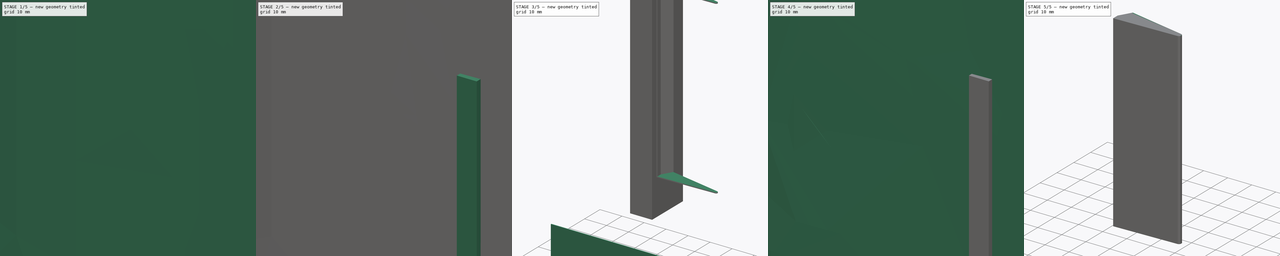
[diagram: build sequence overview — one tinted view per stage of 5, left to right]
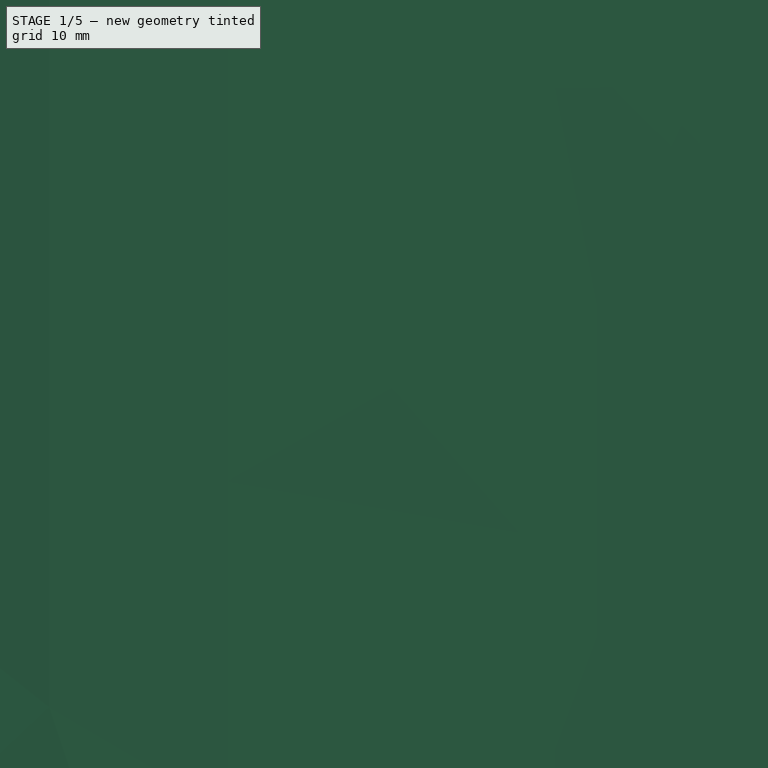
[diagram: stage 1 of 5 — iso view after this stage's code; geometry added in this stage tinted green]
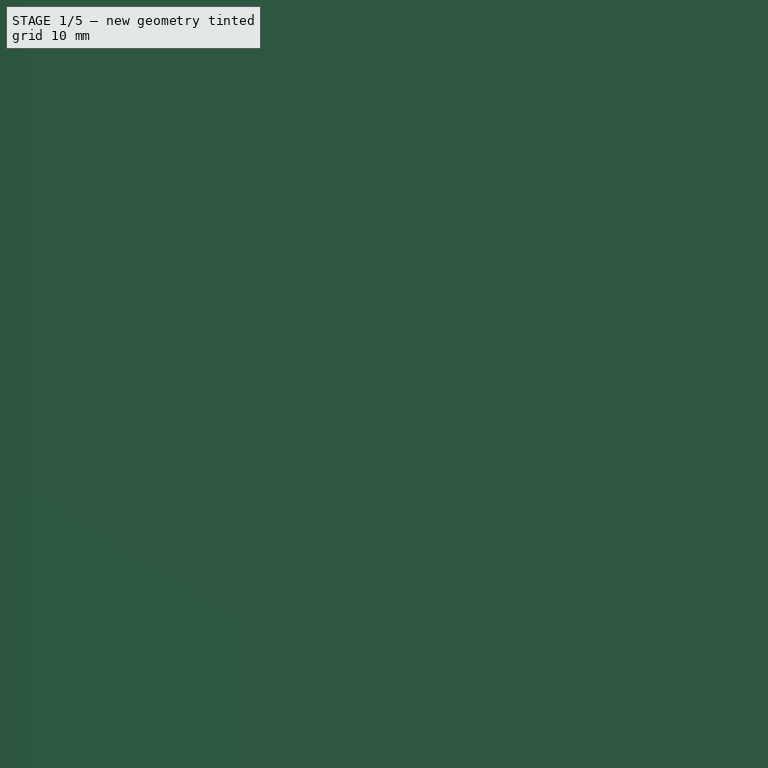
[diagram: stage 1 of 5 — front view after this stage's code; geometry added in this stage tinted green]
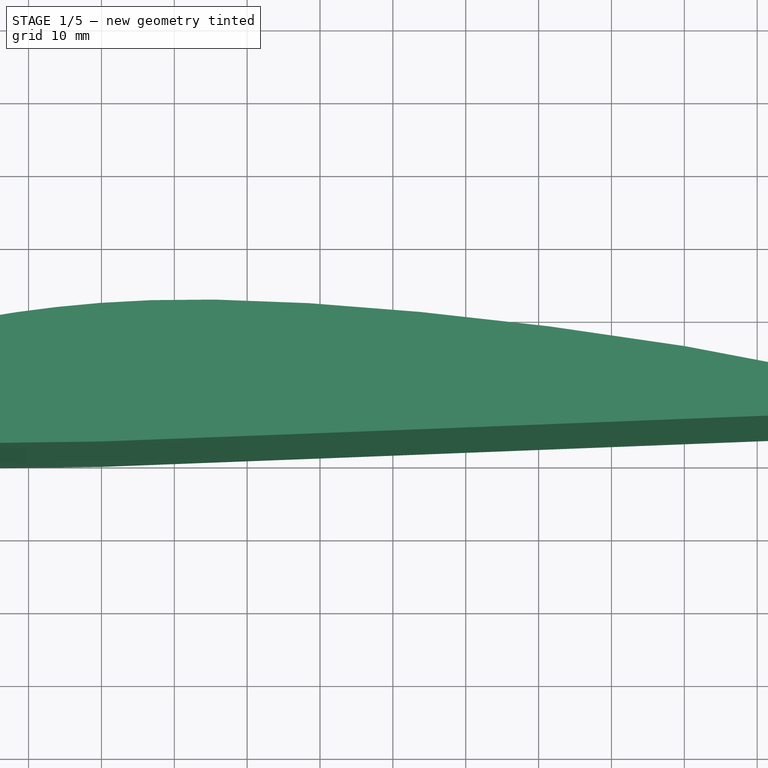
[diagram: stage 1 of 5 — top view after this stage's code; geometry added in this stage tinted green]
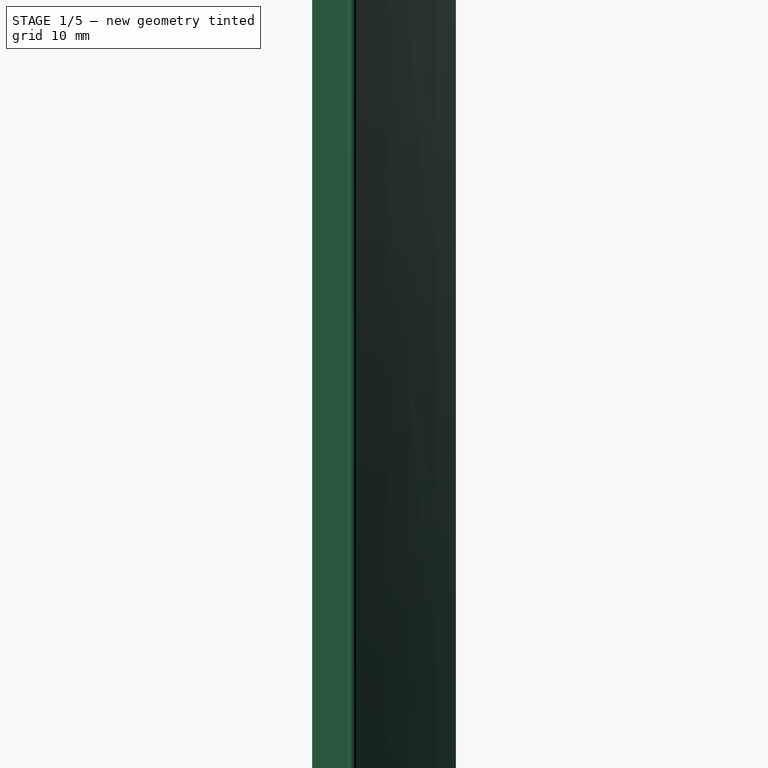
[diagram: stage 1 of 5 — right view after this stage's code; geometry added in this stage tinted green]
FCSTD DOCUMENT  (FreeCAD 0.21R33694 (Git))
Label: aileron
License: All rights reserved
LicenseURL: http://en.wikipedia.org/wiki/All_rights_reserved
objects: Sketcher::SketchObject×15, PartDesign::Pad×15, Part::MultiCommon×13, Part::Box×12, PartDesign::Body×10, Part::Cut×6, Part::MultiFuse×4, Part::FeaturePython×3, App::MeasureDistance×2, PartDesign::Thickness×1
note: 92 computed .brp shape members not serialized (recipe doc carries the construction recipe); baked Part::Feature solids carry a one-line shape summary decoded from their .brp

FEATURE [App::MeasureDistance] Distance  label="Distance: 78.20 mm"
  Distance = 78.2
  P1 = (49,2.05734,55.4)
  P2 = (49,2.05734,133.6)
FEATURE [App::MeasureDistance] Distance001  label="Distance: 30.67 mm"
  Distance = 30.6656
  P1 = (49,2.05734,133.6)
  P2 = (79,-4.29694,133.6)
FEATURE [Part::Box] Box002  label="Cube002"
  AttacherType = Attacher::AttachEngine3D
  Height = 78.2
  Length = 30
  Placement = pos=(49,-12.6,55.4) rot=(0,0,1;0rad)
  Width = 30
FEATURE [Sketcher::SketchObject] Sketch013
  FullyConstrained = false
  MapMode = 5
  Support = -> [XY_Plane011]
  sketch-geometry (30):
    g0: ArcOfCircle CenterX=78.0455 CenterY=-4.69261 CenterZ=0 NormalX=0 NormalY=0 NormalZ=1 AngleXU=0 Radius=0.633228 StartAngle=4.68069 EndAngle=7.80443
    g1-g15: Circle x15 (B-spline internal-alignment scaffolding for g16; pole/knot coordinates omitted)
    g16: BSplineCurve PolesCount=15 KnotsCount=13 Degree=3 IsPeriodic=0
    g17-g29: GeomPoint x13 (B-spline internal-alignment scaffolding for g16; pole/knot coordinates omitted)
  constraints (6):
    c: Weight(g1) = 1
    c: Coincident(g16,g0)
    c: Equal(g1, g2-g15) x14
    c: Coincident(g16,g0)
    c: InternalAlignment(g1-g15 -> g16) x15
    c: InternalAlignment(g17-g29 -> g16) x13
FEATURE [PartDesign::Pad] Pad013
  Direction = (0,0,1)
  Length = 200
  Length2 = 10
  Profile = -> Sketch013
  Type = 0
FEATURE [Part::MultiCommon] Common009
  Shapes = -> [Box002,Pad013]
FEATURE [Part::Box] Box004  label="Cube004"
  AttacherType = Attacher::AttachEngine3D
  Height = 100
  Length = 10
  Placement = pos=(42,-9,39) rot=(0,0,1;0rad)
  Width = 20
FEATURE [Part::Box] Box005  label="Cube005"
  AttacherType = Attacher::AttachEngine3D
  Height = 100
  Length = 10
  Placement = pos=(41,-3,38) rot=(0,0,1;5.75959rad)
  Width = 20
FEATURE [Part::Cut] Cut001
  Base = -> Common009
  Tool = -> Box004
FEATURE [Part::Cut] Cut003
  Base = -> Cut001
  Tool = -> Box005
FEATURE [Part::Box] Box007  label="Cube007"
  AttacherType = Attacher::AttachEngine3D
  Height = 100
  Length = 0.4
  Placement = pos=(52,-6.9,47.7) rot=(0,0,1;0rad)
  Width = 10
FEATURE [Sketcher::SketchObject] Sketch014
  FullyConstrained = false
  MapMode = 5
  Support = -> [XY_Plane012]
  sketch-geometry (30):
    g0: ArcOfCircle CenterX=78.0455 CenterY=-4.69261 CenterZ=0 NormalX=0 NormalY=0 NormalZ=1 AngleXU=0 Radius=0.633228 StartAngle=4.68069 EndAngle=7.80443
    g1-g15: Circle x15 (B-spline internal-alignment scaffolding for g16; pole/knot coordinates omitted)
    g16: BSplineCurve PolesCount=15 KnotsCount=13 Degree=3 IsPeriodic=0
    g17-g29: GeomPoint x13 (B-spline internal-alignment scaffolding for g16; pole/knot coordinates omitted)
  constraints (6):
    c: Weight(g1) = 1
    c: Coincident(g16,g0)
    c: Equal(g1, g2-g15) x14
    c: Coincident(g16,g0)
    c: InternalAlignment(g1-g15 -> g16) x15
    c: InternalAlignment(g17-g29 -> g16) x13
FEATURE [PartDesign::Pad] Pad014
  Direction = (0,0,1)
  Length = 200
  Length2 = 10
  Profile = -> Sketch014
  Type = 0
FEATURE [Part::MultiCommon] Common012
  Shapes = -> [Cut003,Box007]
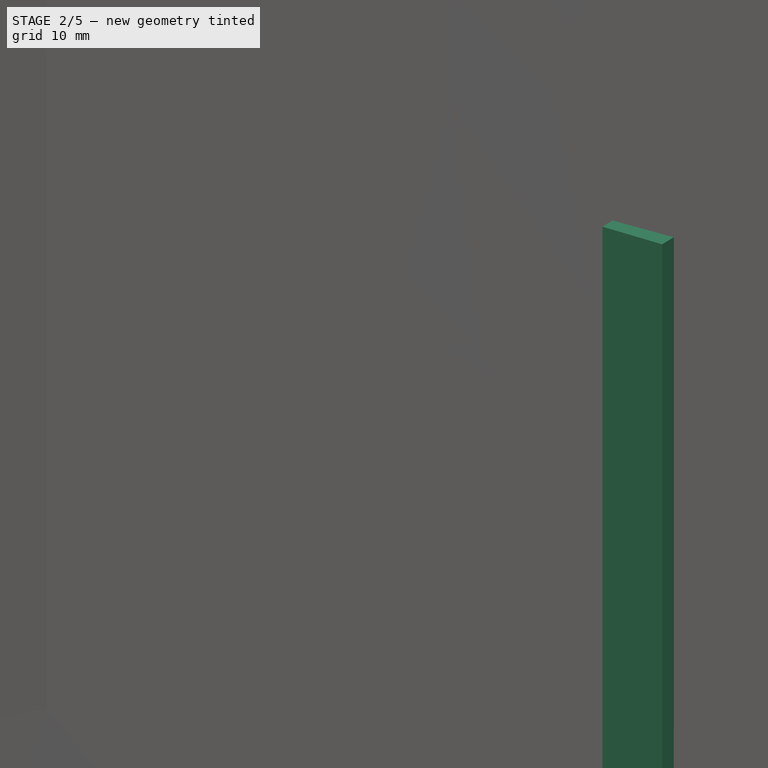
[diagram: stage 2 of 5 — iso view after this stage's code; geometry added in this stage tinted green]
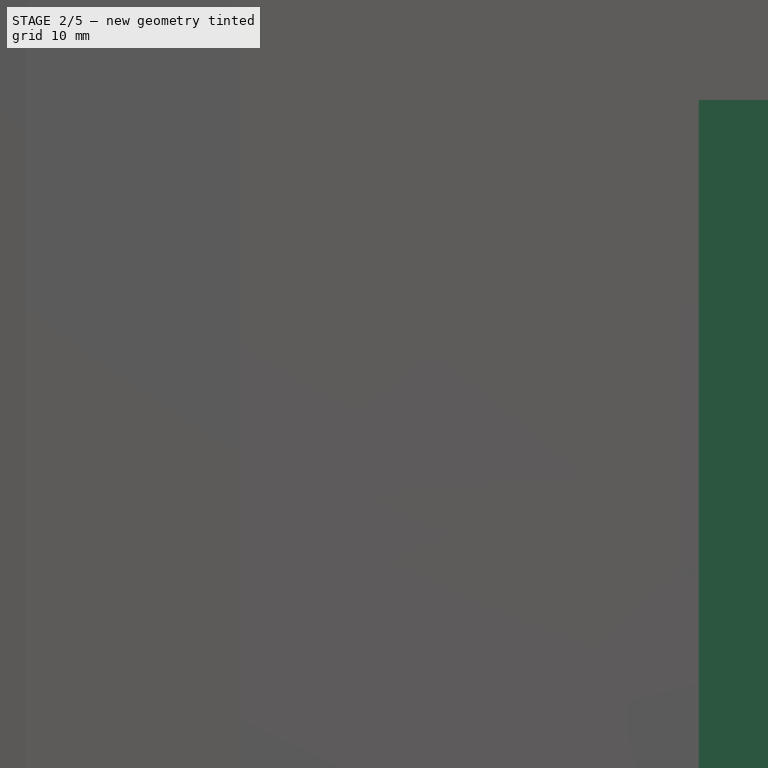
[diagram: stage 2 of 5 — front view after this stage's code; geometry added in this stage tinted green]
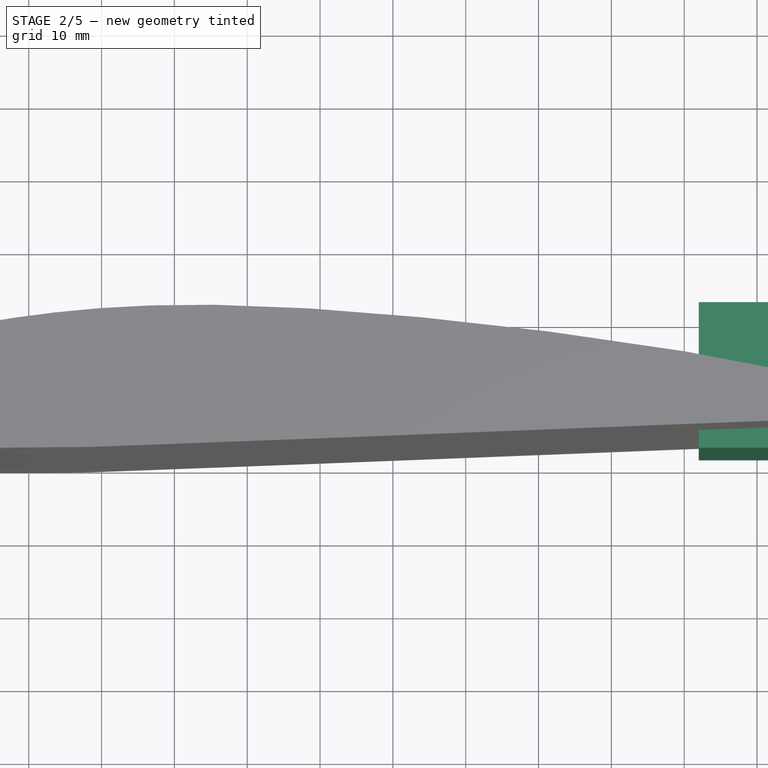
[diagram: stage 2 of 5 — top view after this stage's code; geometry added in this stage tinted green]
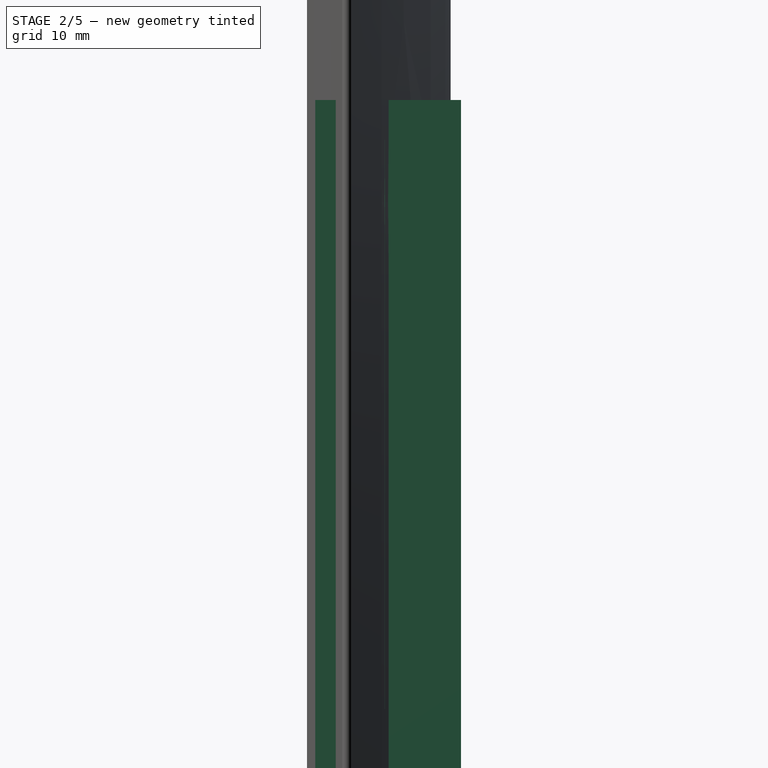
[diagram: stage 2 of 5 — right view after this stage's code; geometry added in this stage tinted green]
FEATURE [Sketcher::SketchObject] Sketch006
  FullyConstrained = false
  MapMode = 5
  Support = -> [XY_Plane006]
  sketch-geometry (30):
    g0: ArcOfCircle CenterX=78.0455 CenterY=-4.69261 CenterZ=0 NormalX=0 NormalY=0 NormalZ=1 AngleXU=0 Radius=0.633228 StartAngle=4.68069 EndAngle=7.80443
    g1-g15: Circle x15 (B-spline internal-alignment scaffolding for g16; pole/knot coordinates omitted)
    g16: BSplineCurve PolesCount=15 KnotsCount=13 Degree=3 IsPeriodic=0
    g17-g29: GeomPoint x13 (B-spline internal-alignment scaffolding for g16; pole/knot coordinates omitted)
  constraints (6):
    c: Weight(g1) = 1
    c: Coincident(g16,g0)
    c: Equal(g1, g2-g15) x14
    c: Coincident(g16,g0)
    c: InternalAlignment(g1-g15 -> g16) x15
    c: InternalAlignment(g17-g29 -> g16) x13
FEATURE [PartDesign::Pad] Pad006
  Direction = (0,0,1)
  Length = 200
  Length2 = 10
  Profile = -> Sketch006
  ReferenceAxis = -> Sketch006 [N_Axis]
  Type = 0
FEATURE [Part::Box] Box003  label="Cube003"
  AttacherType = Attacher::AttachEngine3D
  Height = 100
  Length = 10
  Placement = pos=(42,-9,39) rot=(0,0,1;0rad)
  Width = 20
FEATURE [Part::Box] Box008  label="Cube008"
  AttacherType = Attacher::AttachEngine3D
  Height = 100
  Length = 0.4
  Placement = pos=(50.9404,-5.7391,38.2) rot=(0,0,1;5.75959rad)
  Width = 10
FEATURE [Part::Box] Box009  label="Cube009"
  AttacherType = Attacher::AttachEngine3D
  Height = 78.2
  Length = 30
  Placement = pos=(49,-12.6,55.4) rot=(0,0,1;0rad)
  Width = 30
FEATURE [Part::Box] Box010  label="Cube010"
  AttacherType = Attacher::AttachEngine3D
  Height = 100
  Length = 10
  Placement = pos=(42,-9,39) rot=(0,0,1;0rad)
  Width = 20
FEATURE [Part::Box] Box011  label="Cube011"
  AttacherType = Attacher::AttachEngine3D
  Height = 100
  Length = 10
  Placement = pos=(41,-3,38) rot=(0,0,-1;0.523599rad)
  Width = 20
FEATURE [Part::MultiCommon] Common010
  Shapes = -> [Box009,Pad014]
FEATURE [Part::Cut] Cut004
  Base = -> Common010
  Tool = -> Box010
FEATURE [Part::Cut] Cut005
  Base = -> Cut004
  Tool = -> Box011
FEATURE [Part::MultiCommon] Common011
  Shapes = -> [Cut005,Box008]
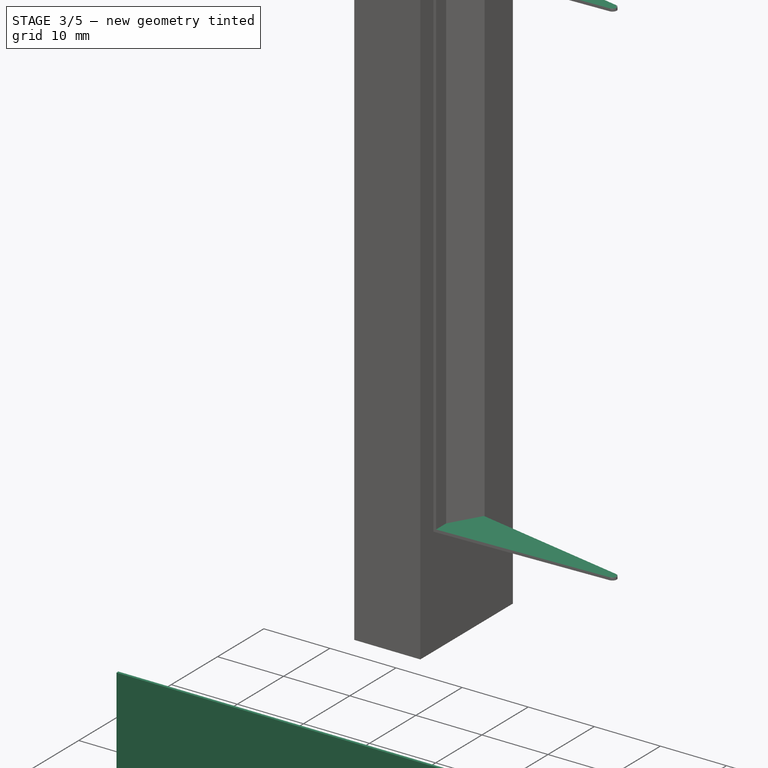
[diagram: stage 3 of 5 — iso view after this stage's code; geometry added in this stage tinted green]
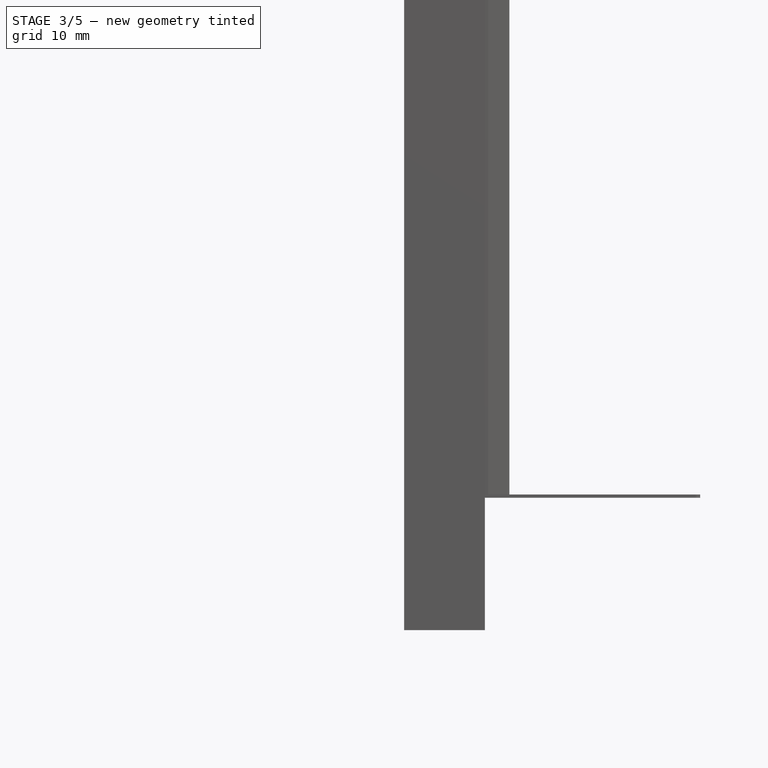
[diagram: stage 3 of 5 — front view after this stage's code; geometry added in this stage tinted green]
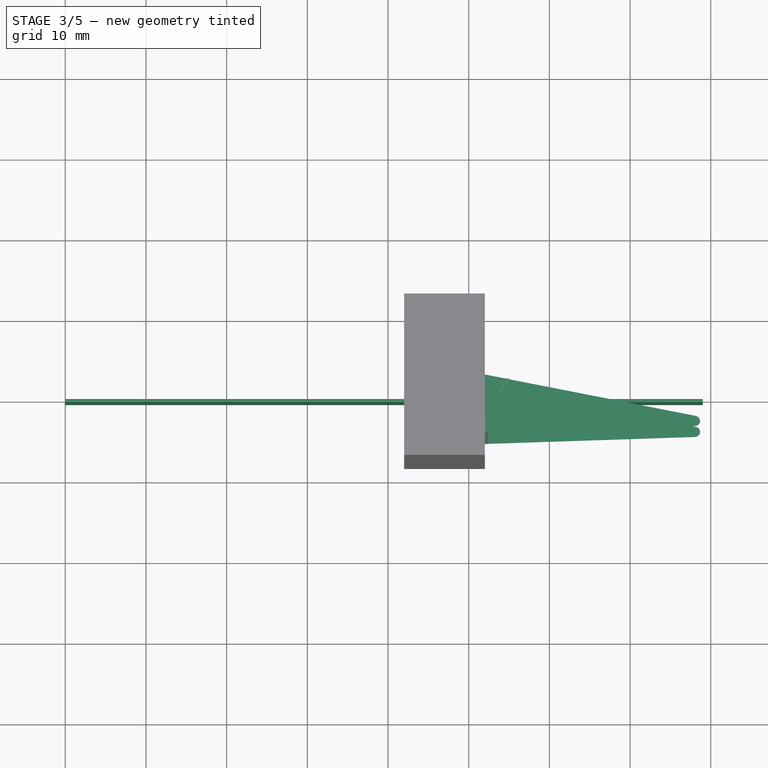
[diagram: stage 3 of 5 — top view after this stage's code; geometry added in this stage tinted green]
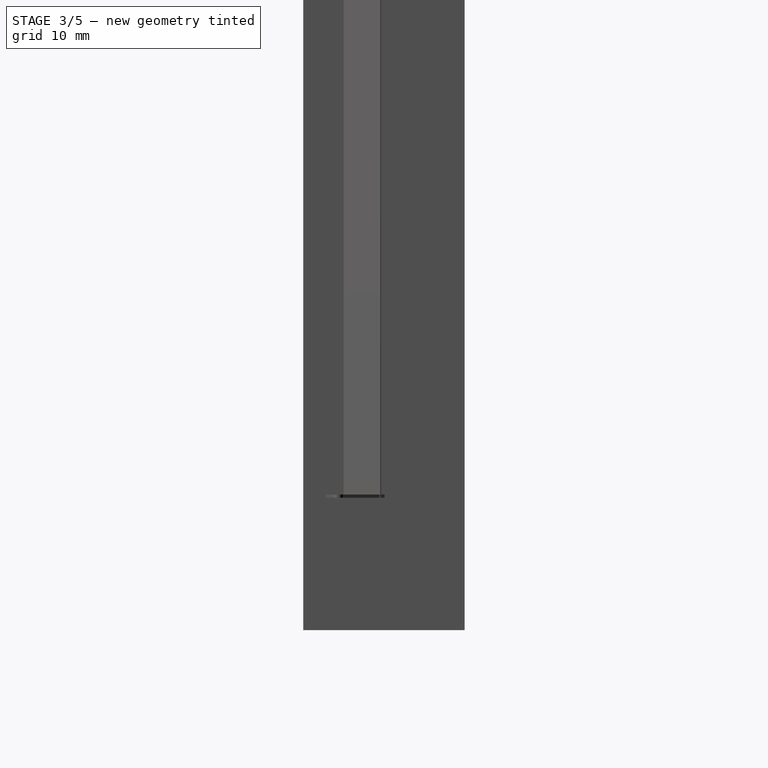
[diagram: stage 3 of 5 — right view after this stage's code; geometry added in this stage tinted green]
FEATURE [Sketcher::SketchObject] Sketch
  FullyConstrained = true
  MapMode = 5
  Placement = pos=(0,0,0) rot=(1,0,0;1.5708rad)
  Support = -> [XZ_Plane]
  sketch-geometry (4):
    g0: LineSegment StartX=0 StartY=0 StartZ=0 EndX=79 EndY=0 EndZ=0
    g1: LineSegment StartX=79 StartY=0 StartZ=0 EndX=79 EndY=20 EndZ=0
    g2: LineSegment StartX=79 StartY=20 StartZ=0 EndX=0 EndY=20 EndZ=0
    g3: LineSegment StartX=0 StartY=20 StartZ=0 EndX=0 EndY=0 EndZ=0
  constraints (11):
    c: Coincident(g0,g1)
    c: Coincident(g1,g2)
    c: Coincident(g2,g3)
    c: Coincident(g3,g0)
    c: Horizontal(g0)
    c: Horizontal(g2)
    c: Vertical(g1)
    c: Vertical(g3)
    c: Coincident(g0,g-1)
    c: DistanceY(g3,g3) = 20
    c: DistanceX(g2,g2) = 79
FEATURE [PartDesign::Pad] Pad
  Direction = (0,-1,2e-16)
  Length = 0.4
  Length2 = 10
  Placement = pos=(0,0,0) rot=(1,0,0;1.5708rad)
  Profile = -> Sketch
  ReferenceAxis = -> Sketch [N_Axis]
  Type = 0
FEATURE [Sketcher::SketchObject] Sketch001
  ExternalGeometry = -> [Pad]
  FullyConstrained = true
  MapMode = 5
  Placement = pos=(0,0,0) rot=(-1,0,0;1.5708rad)
  Support = -> [Pad]
  sketch-geometry (8):
    g0: LineSegment StartX=0 StartY=0 StartZ=0 EndX=0.4 EndY=0 EndZ=0
    g1: LineSegment StartX=0.4 StartY=0 StartZ=0 EndX=0.4 EndY=-20 EndZ=0
    g2: LineSegment StartX=0.4 StartY=-20 StartZ=0 EndX=0 EndY=-20 EndZ=0
    g3: LineSegment StartX=0 StartY=-20 StartZ=0 EndX=0 EndY=0 EndZ=0
    g4: LineSegment StartX=78.6 StartY=0 StartZ=0 EndX=79 EndY=0 EndZ=0
    g5: LineSegment StartX=79 StartY=0 StartZ=0 EndX=79 EndY=-20 EndZ=0
    g6: LineSegment StartX=79 StartY=-20 StartZ=0 EndX=78.6 EndY=-20 EndZ=0
    g7: LineSegment StartX=78.6 StartY=-20 StartZ=0 EndX=78.6 EndY=0 EndZ=0
  constraints (23):
    c: Coincident(g0,g1)
    c: Coincident(g1,g2)
    c: Coincident(g2,g3)
    c: Coincident(g3,g0)
    c: Horizontal(g0)
    c: Horizontal(g2)
    c: Vertical(g1)
    c: Vertical(g3)
    c: Coincident(g0,g-1)
    c: Coincident(g4,g5)
    c: Coincident(g5,g6)
    c: Coincident(g6,g7)
    c: Coincident(g7,g4)
    c: Horizontal(g4)
    c: Horizontal(g6)
    c: Vertical(g5)
    c: Vertical(g7)
    c: PointOnObject(g4,g-1)
    c: DistanceY(g-3,g2) = 0
    c: DistanceY(g-3,g6) = 0
    c: DistanceX(g0,g0) = 0.4
    c: DistanceX(g4,g-3) = 0
    c: DistanceX(g4,g4) = 0.4
FEATURE [PartDesign::Pad] Pad001
  BaseFeature = -> Pad
  Direction = (0,1,-2e-16)
  Length = 30
  Length2 = 10
  Placement = pos=(0,0,0) rot=(1,0,0;1.5708rad)
  Profile = -> Sketch001
  ReferenceAxis = -> Sketch001 [N_Axis]
  Type = 0
FEATURE [PartDesign::Body] Body
  Group = -> [Sketch,Pad,Sketch001,Pad001]
  Origin = -> Origin
  Placement = pos=(49,10,134) rot=(0.57735,0.57735,-0.57735;2.0944rad)
  Tip = -> Pad001
FEATURE [Sketcher::SketchObject] Sketch002
  FullyConstrained = true
  MapMode = 5
  Support = -> [XY_Plane001]
  sketch-geometry (4):
    g0: LineSegment StartX=0.4 StartY=0 StartZ=0 EndX=78.6 EndY=0 EndZ=0
    g1: LineSegment StartX=78.6 StartY=0 StartZ=0 EndX=78.6 EndY=30 EndZ=0
    g2: LineSegment StartX=78.6 StartY=30 StartZ=0 EndX=0.4 EndY=30 EndZ=0
    g3: LineSegment StartX=0.4 StartY=30 StartZ=0 EndX=0.4 EndY=0 EndZ=0
  constraints (12):
    c: Coincident(g0,g1)
    c: Coincident(g1,g2)
    c: Coincident(g2,g3)
    c: Coincident(g3,g0)
    c: Horizontal(g0)
    c: Horizontal(g2)
    c: Vertical(g1)
    c: Vertical(g3)
    c: PointOnObject(g0,g-1)
    c: DistanceY(g0,g2) = 30
    c: DistanceX(g2,g1) = 78.2
    c: DistanceX(g-1,g2) = 0.4
FEATURE [PartDesign::Pad] Pad002
  Direction = (0,0,1)
  Length = 20
  Length2 = 10
  Profile = -> Sketch002
  ReferenceAxis = -> Sketch002 [N_Axis]
  Type = 0
FEATURE [PartDesign::Body] Body005
  Group = -> [Pad006,Sketch006]
  Origin = -> Origin005
  Tip = -> Pad006
FEATURE [Part::MultiCommon] Common002
  Placement = pos=(0,0,-0.4) rot=(0,0,1;0rad)
  Shapes = -> [Body,Body005]
FEATURE [Sketcher::SketchObject] Sketch007
  FullyConstrained = true
  MapMode = 5
  Placement = pos=(0,0,0) rot=(1,0,0;1.5708rad)
  Support = -> [XZ_Plane006]
  sketch-geometry (4):
    g0: LineSegment StartX=0 StartY=0 StartZ=0 EndX=79 EndY=0 EndZ=0
    g1: LineSegment StartX=79 StartY=0 StartZ=0 EndX=79 EndY=20 EndZ=0
    g2: LineSegment StartX=79 StartY=20 StartZ=0 EndX=0 EndY=20 EndZ=0
    g3: LineSegment StartX=0 StartY=20 StartZ=0 EndX=0 EndY=0 EndZ=0
  constraints (11):
    c: Coincident(g0,g1)
    c: Coincident(g1,g2)
    c: Coincident(g2,g3)
    c: Coincident(g3,g0)
    c: Horizontal(g0)
    c: Horizontal(g2)
    c: Vertical(g1)
    c: Vertical(g3)
    c: Coincident(g0,g-1)
    c: DistanceY(g3,g3) = 20
    c: DistanceX(g2,g2) = 79
FEATURE [PartDesign::Pad] Pad007
  Direction = (0,-1,2e-16)
  Length = 0.4
  Length2 = 10
  Placement = pos=(0,0,0) rot=(1,0,0;1.5708rad)
  Profile = -> Sketch007
  ReferenceAxis = -> Sketch007 [N_Axis]
  Type = 0
FEATURE [Sketcher::SketchObject] Sketch008
  ExternalGeometry = -> [Pad007]
  FullyConstrained = true
  MapMode = 5
  Placement = pos=(0,0,0) rot=(-1,0,0;1.5708rad)
  Support = -> [Pad007]
  sketch-geometry (8):
    g0: LineSegment StartX=0 StartY=0 StartZ=0 EndX=0.4 EndY=0 EndZ=0
    g1: LineSegment StartX=0.4 StartY=0 StartZ=0 EndX=0.4 EndY=-20 EndZ=0
    g2: LineSegment StartX=0.4 StartY=-20 StartZ=0 EndX=0 EndY=-20 EndZ=0
    g3: LineSegment StartX=0 StartY=-20 StartZ=0 EndX=0 EndY=0 EndZ=0
    g4: LineSegment StartX=78.6 StartY=0 StartZ=0 EndX=79 EndY=0 EndZ=0
    g5: LineSegment StartX=79 StartY=0 StartZ=0 EndX=79 EndY=-20 EndZ=0
    g6: LineSegment StartX=79 StartY=-20 StartZ=0 EndX=78.6 EndY=-20 EndZ=0
    g7: LineSegment StartX=78.6 StartY=-20 StartZ=0 EndX=78.6 EndY=0 EndZ=0
  constraints (23):
    c: Coincident(g0,g1)
    c: Coincident(g1,g2)
    c: Coincident(g2,g3)
    c: Coincident(g3,g0)
    c: Horizontal(g0)
    c: Horizontal(g2)
    c: Vertical(g1)
    c: Vertical(g3)
    c: Coincident(g0,g-1)
    c: Coincident(g4,g5)
    c: Coincident(g5,g6)
    c: Coincident(g6,g7)
    c: Coincident(g7,g4)
    c: Horizontal(g4)
    c: Horizontal(g6)
    c: Vertical(g5)
    c: Vertical(g7)
    c: PointOnObject(g4,g-1)
    c: DistanceY(g-3,g2) = 0
    c: DistanceY(g-3,g6) = 0
    c: DistanceX(g0,g0) = 0.4
    c: DistanceX(g4,g-3) = 0
    c: DistanceX(g4,g4) = 0.4
FEATURE [PartDesign::Pad] Pad008
  BaseFeature = -> Pad007
  Direction = (0,1,-2e-16)
  Length = 30
  Length2 = 10
  Placement = pos=(0,0,0) rot=(1,0,0;1.5708rad)
  Profile = -> Sketch008
  ReferenceAxis = -> Sketch008 [N_Axis]
  Type = 0
FEATURE [PartDesign::Body] Body006
  Group = -> [Sketch007,Pad007,Sketch008,Pad008]
  Origin = -> Origin006
  Placement = pos=(49,10,134) rot=(0.57735,0.57735,-0.57735;2.0944rad)
  Tip = -> Pad008
FEATURE [Sketcher::SketchObject] Sketch009
  FullyConstrained = false
  MapMode = 5
  Support = -> [XY_Plane008]
  sketch-geometry (30):
    g0: ArcOfCircle CenterX=78.0455 CenterY=-4.69261 CenterZ=0 NormalX=0 NormalY=0 NormalZ=1 AngleXU=0 Radius=0.633228 StartAngle=4.68069 EndAngle=7.80443
    g1-g15: Circle x15 (B-spline internal-alignment scaffolding for g16; pole/knot coordinates omitted)
    g16: BSplineCurve PolesCount=15 KnotsCount=13 Degree=3 IsPeriodic=0
    g17-g29: GeomPoint x13 (B-spline internal-alignment scaffolding for g16; pole/knot coordinates omitted)
  constraints (6):
    c: Weight(g1) = 1
    c: Coincident(g16,g0)
    c: Equal(g1, g2-g15) x14
    c: Coincident(g16,g0)
    c: InternalAlignment(g1-g15 -> g16) x15
    c: InternalAlignment(g17-g29 -> g16) x13
FEATURE [PartDesign::Pad] Pad009
  Direction = (0,0,1)
  Length = 200
  Length2 = 10
  Profile = -> Sketch009
  ReferenceAxis = -> Sketch009 [N_Axis]
  Type = 0
FEATURE [PartDesign::Body] Body007
  Group = -> [Pad009,Sketch009]
  Origin = -> Origin007
  Tip = -> Pad009
FEATURE [Part::MultiCommon] Common004
  Placement = pos=(0,0,0.4) rot=(0,0,1;0rad)
  Shapes = -> [Body006,Body007]
FEATURE [Sketcher::SketchObject] Sketch010
  FullyConstrained = true
  MapMode = 5
  Placement = pos=(0,0,0) rot=(1,0,0;1.5708rad)
  Support = -> [XZ_Plane008]
  sketch-geometry (4):
    g0: LineSegment StartX=0 StartY=0 StartZ=0 EndX=79 EndY=0 EndZ=0
    g1: LineSegment StartX=79 StartY=0 StartZ=0 EndX=79 EndY=20 EndZ=0
    g2: LineSegment StartX=79 StartY=20 StartZ=0 EndX=0 EndY=20 EndZ=0
    g3: LineSegment StartX=0 StartY=20 StartZ=0 EndX=0 EndY=0 EndZ=0
  constraints (11):
    c: Coincident(g0,g1)
    c: Coincident(g1,g2)
    c: Coincident(g2,g3)
    c: Coincident(g3,g0)
    c: Horizontal(g0)
    c: Horizontal(g2)
    c: Vertical(g1)
    c: Vertical(g3)
    c: Coincident(g0,g-1)
    c: DistanceY(g3,g3) = 20
    c: DistanceX(g2,g2) = 79
FEATURE [PartDesign::Pad] Pad010
  Direction = (0,-1,2e-16)
  Length = 0.4
  Length2 = 10
  Placement = pos=(0,0,0) rot=(1,0,0;1.5708rad)
  Profile = -> Sketch010
  ReferenceAxis = -> Sketch010 [N_Axis]
  Type = 0
FEATURE [Part::MultiCommon] Common007
  Shapes = -> [Body001,Common004]
FEATURE [Part::MultiCommon] Common008
  Shapes = -> [Common002,Body001]
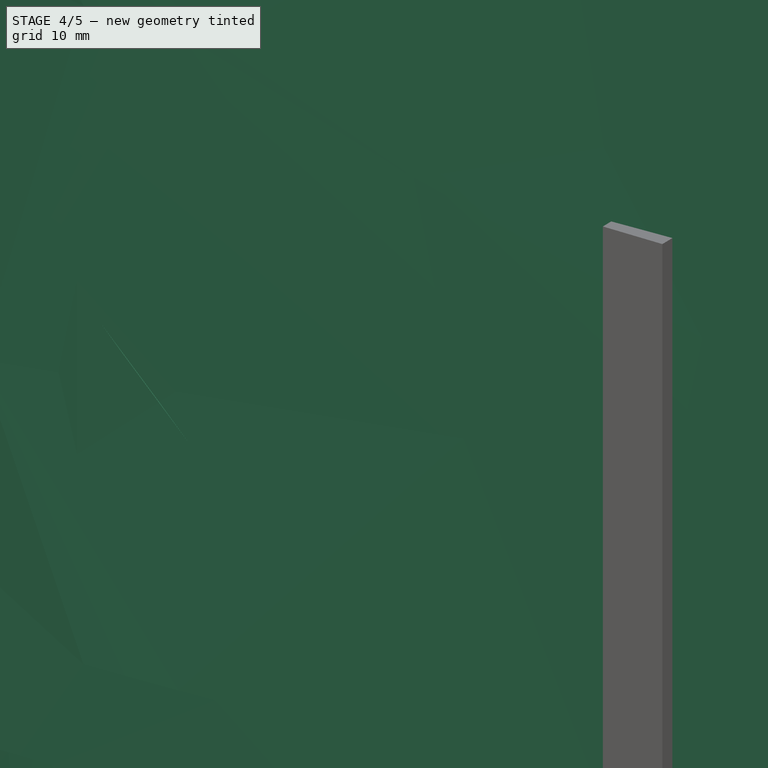
[diagram: stage 4 of 5 — iso view after this stage's code; geometry added in this stage tinted green]
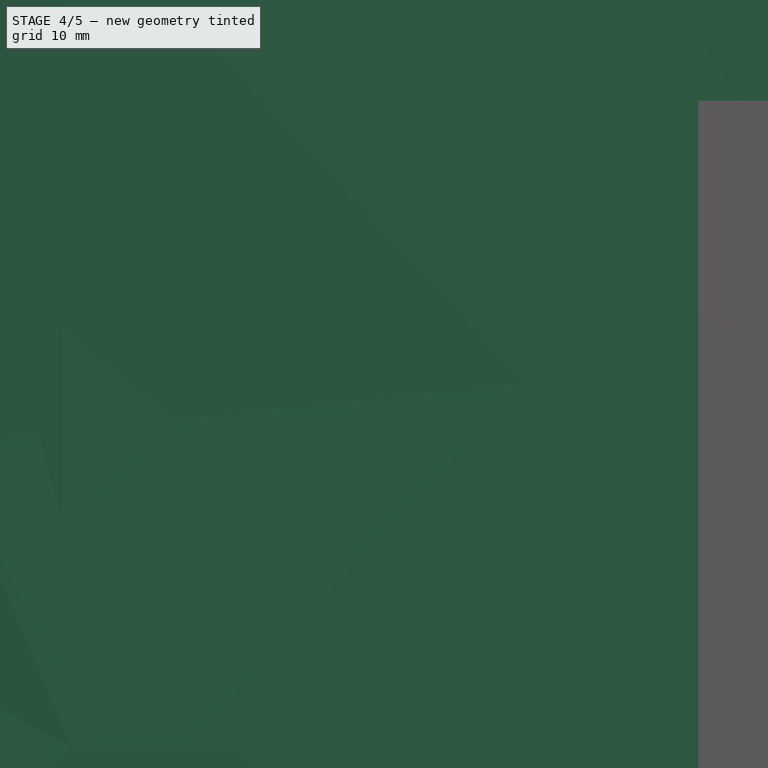
[diagram: stage 4 of 5 — front view after this stage's code; geometry added in this stage tinted green]
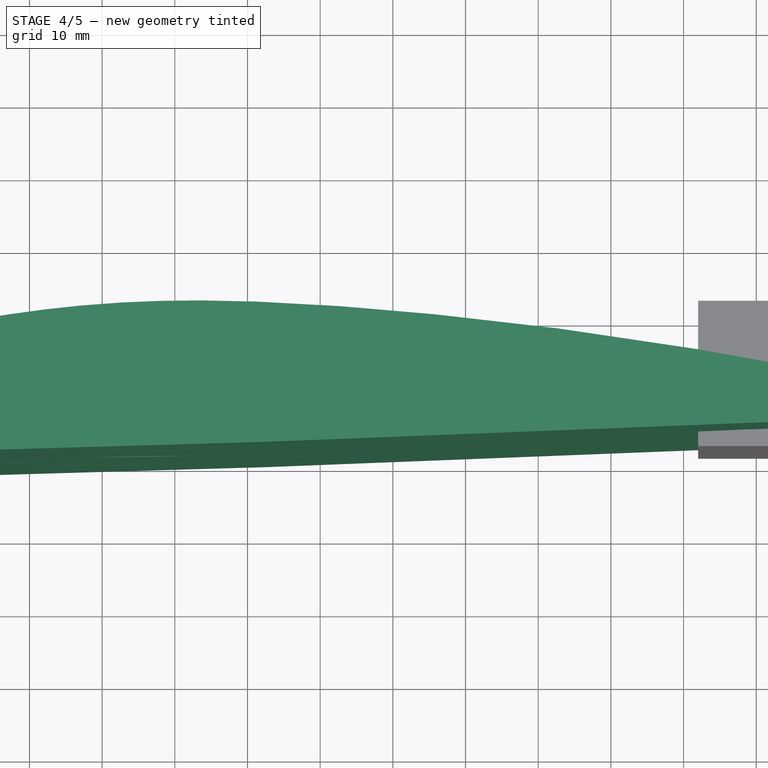
[diagram: stage 4 of 5 — top view after this stage's code; geometry added in this stage tinted green]
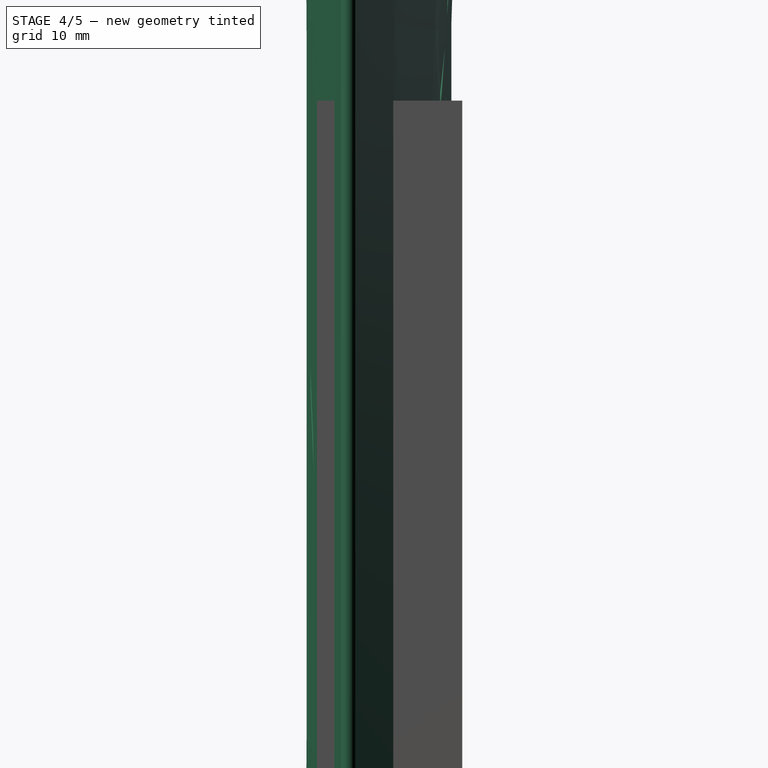
[diagram: stage 4 of 5 — right view after this stage's code; geometry added in this stage tinted green]
FEATURE [PartDesign::Body] Body001
  Group = -> [Sketch002,Pad002]
  Origin = -> Origin001
  Placement = pos=(49,10,134) rot=(0.57735,0.57735,-0.57735;2.0944rad)
  Tip = -> Pad002
FEATURE [Part::Box] Box  label="Cube"
  AttacherType = Attacher::AttachEngine3D
  Height = 0.4
  Length = 300
  Placement = pos=(-100,-15,0) rot=(0,1,0;0.785398rad)
  Width = 30
FEATURE [Part::FeaturePython] Array002  # Draft array (typed FeaturePython)
  AlwaysSyncPlacement = false
  Angle = 360
  ArrayType = 0
  Axis = (0,0,1)
  Base = -> Box001
  Center = (0,0,0)
  Count = 20
  ExpandArray = false
  Fuse = false
  IntervalAxis = (0,0,0)
  IntervalX = (100,0,0)
  IntervalY = (0,100,0)
  IntervalZ = (0,0,40)
  NumberCircles = 3
  NumberPolar = 5
  NumberX = 1
  NumberY = 1
  NumberZ = 20
  Placement = pos=(0,1.90735e-05,-160) rot=(0,0,1;0rad)
  PlacementList = 20 placements: arithmetic series from (-100,-15,0) step (0,0,40) to (-100,-15,760)
  RadialDistance = 50
  ScaleList = (20) [(1,1,1),(1,1,1),(1,1,1),(1,1,1),(1,1,1),(1,1,1),(1,1,1),(1,1,1),(1,1,1),(1,1,1),(1,1,1),(1,1,1),(1,1,1),(1,1,1),(1,1,1),(1,1,1),(1,1,1),(1,1,1),(1,1,1),(1,1,1)]
  Symmetry = 1
  TangentialDistance = 25
FEATURE [Sketcher::SketchObject] Sketch003
  FullyConstrained = false
  MapMode = 5
  Support = -> [XY_Plane002]
  sketch-geometry (30):
    g0: ArcOfCircle CenterX=78.0455 CenterY=-4.69261 CenterZ=0 NormalX=0 NormalY=0 NormalZ=1 AngleXU=0 Radius=0.633228 StartAngle=4.68069 EndAngle=7.80443
    g1-g15: Circle x15 (B-spline internal-alignment scaffolding for g16; pole/knot coordinates omitted)
    g16: BSplineCurve PolesCount=15 KnotsCount=13 Degree=3 IsPeriodic=0
    g17-g29: GeomPoint x13 (B-spline internal-alignment scaffolding for g16; pole/knot coordinates omitted)
  constraints (6):
    c: Weight(g1) = 1
    c: Coincident(g16,g0)
    c: Equal(g1, g2-g15) x14
    c: Coincident(g16,g0)
    c: InternalAlignment(g1-g15 -> g16) x15
    c: InternalAlignment(g17-g29 -> g16) x13
FEATURE [PartDesign::Pad] Pad003
  Direction = (0,0,1)
  Length = 200
  Length2 = 10
  Profile = -> Sketch003
  Type = 0
FEATURE [Sketcher::SketchObject] Sketch004
  FullyConstrained = false
  MapMode = 5
  Support = -> [XY_Plane003]
  sketch-geometry (30):
    g0: ArcOfCircle CenterX=78.0455 CenterY=-4.69261 CenterZ=0 NormalX=0 NormalY=0 NormalZ=1 AngleXU=0 Radius=0.633228 StartAngle=4.68069 EndAngle=7.80443
    g1-g15: Circle x15 (B-spline internal-alignment scaffolding for g16; pole/knot coordinates omitted)
    g16: BSplineCurve PolesCount=15 KnotsCount=13 Degree=3 IsPeriodic=0
    g17-g29: GeomPoint x13 (B-spline internal-alignment scaffolding for g16; pole/knot coordinates omitted)
  constraints (6):
    c: Weight(g1) = 1
    c: Coincident(g16,g0)
    c: Equal(g1, g2-g15) x14
    c: Coincident(g16,g0)
    c: InternalAlignment(g1-g15 -> g16) x15
    c: InternalAlignment(g17-g29 -> g16) x13
FEATURE [PartDesign::Pad] Pad004
  Direction = (0,0,1)
  Length = 200
  Length2 = 10
  Profile = -> Sketch004
  Type = 0
FEATURE [PartDesign::Body] Body003
  Group = -> [Sketch004,Pad004]
  Origin = -> Origin003
  Tip = -> Pad004
FEATURE [Part::MultiCommon] Common001
  Shapes = -> [Body003,Array001]
FEATURE [Sketcher::SketchObject] Sketch005
  FullyConstrained = false
  MapMode = 5
  Support = -> [XY_Plane004]
  sketch-geometry (30):
    g0: ArcOfCircle CenterX=78.0455 CenterY=-4.69261 CenterZ=0 NormalX=0 NormalY=0 NormalZ=1 AngleXU=0 Radius=0.633228 StartAngle=4.68069 EndAngle=7.80443
    g1-g15: Circle x15 (B-spline internal-alignment scaffolding for g16; pole/knot coordinates omitted)
    g16: BSplineCurve PolesCount=15 KnotsCount=13 Degree=3 IsPeriodic=0
    g17-g29: GeomPoint x13 (B-spline internal-alignment scaffolding for g16; pole/knot coordinates omitted)
  constraints (6):
    c: Weight(g1) = 1
    c: Coincident(g16,g0)
    c: Equal(g1, g2-g15) x14
    c: Coincident(g16,g0)
    c: InternalAlignment(g1-g15 -> g16) x15
    c: InternalAlignment(g17-g29 -> g16) x13
FEATURE [PartDesign::Pad] Pad005
  Direction = (0,0,1)
  Length = 200
  Length2 = 10
  Profile = -> Sketch005
  Type = 0
FEATURE [PartDesign::Thickness] Thickness
  Base = -> Pad003 [Face4,Face3]
  BaseFeature = -> Pad003
  Intersection = false
  Join = 0
  Mode = 1
  SupportTransform = false
  Value = 0.4
FEATURE [Sketcher::SketchObject] Sketch011
  ExternalGeometry = -> [Pad010]
  FullyConstrained = true
  MapMode = 5
  Placement = pos=(0,0,0) rot=(-1,0,0;1.5708rad)
  Support = -> [Pad010]
  sketch-geometry (8):
    g0: LineSegment StartX=0 StartY=0 StartZ=0 EndX=0.4 EndY=0 EndZ=0
    g1: LineSegment StartX=0.4 StartY=0 StartZ=0 EndX=0.4 EndY=-20 EndZ=0
    g2: LineSegment StartX=0.4 StartY=-20 StartZ=0 EndX=0 EndY=-20 EndZ=0
    g3: LineSegment StartX=0 StartY=-20 StartZ=0 EndX=0 EndY=0 EndZ=0
    g4: LineSegment StartX=78.6 StartY=0 StartZ=0 EndX=79 EndY=0 EndZ=0
    g5: LineSegment StartX=79 StartY=0 StartZ=0 EndX=79 EndY=-20 EndZ=0
    g6: LineSegment StartX=79 StartY=-20 StartZ=0 EndX=78.6 EndY=-20 EndZ=0
    g7: LineSegment StartX=78.6 StartY=-20 StartZ=0 EndX=78.6 EndY=0 EndZ=0
  constraints (23):
    c: Coincident(g0,g1)
    c: Coincident(g1,g2)
    c: Coincident(g2,g3)
    c: Coincident(g3,g0)
    c: Horizontal(g0)
    c: Horizontal(g2)
    c: Vertical(g1)
    c: Vertical(g3)
    c: Coincident(g0,g-1)
    c: Coincident(g4,g5)
    c: Coincident(g5,g6)
    c: Coincident(g6,g7)
    c: Coincident(g7,g4)
    c: Horizontal(g4)
    c: Horizontal(g6)
    c: Vertical(g5)
    c: Vertical(g7)
    c: PointOnObject(g4,g-1)
    c: DistanceY(g-3,g2) = 0
    c: DistanceY(g-3,g6) = 0
    c: DistanceX(g0,g0) = 0.4
    c: DistanceX(g4,g-3) = 0
    c: DistanceX(g4,g4) = 0.4
FEATURE [PartDesign::Pad] Pad011
  BaseFeature = -> Pad010
  Direction = (0,1,-2e-16)
  Length = 30
  Length2 = 10
  Placement = pos=(0,0,0) rot=(1,0,0;1.5708rad)
  Profile = -> Sketch011
  ReferenceAxis = -> Sketch011 [N_Axis]
  Type = 0
FEATURE [PartDesign::Body] Body008
  Group = -> [Sketch010,Pad010,Sketch011,Pad011]
  Origin = -> Origin008
  Placement = pos=(49,10,134) rot=(0.57735,0.57735,-0.57735;2.0944rad)
  Tip = -> Pad011
FEATURE [Sketcher::SketchObject] Sketch012
  FullyConstrained = false
  MapMode = 5
  Support = -> [XY_Plane010]
  sketch-geometry (30):
    g0: ArcOfCircle CenterX=78.0455 CenterY=-4.69261 CenterZ=0 NormalX=0 NormalY=0 NormalZ=1 AngleXU=0 Radius=0.633228 StartAngle=4.68069 EndAngle=7.80443
    g1-g15: Circle x15 (B-spline internal-alignment scaffolding for g16; pole/knot coordinates omitted)
    g16: BSplineCurve PolesCount=15 KnotsCount=13 Degree=3 IsPeriodic=0
    g17-g29: GeomPoint x13 (B-spline internal-alignment scaffolding for g16; pole/knot coordinates omitted)
  constraints (6):
    c: Weight(g1) = 1
    c: Coincident(g16,g0)
    c: Equal(g1, g2-g15) x14
    c: Coincident(g16,g0)
    c: InternalAlignment(g1-g15 -> g16) x15
    c: InternalAlignment(g17-g29 -> g16) x13
FEATURE [PartDesign::Pad] Pad012
  Direction = (0,0,1)
  Length = 200
  Length2 = 10
  Profile = -> Sketch012
  ReferenceAxis = -> Sketch012 [N_Axis]
  Type = 0
FEATURE [PartDesign::Body] Body009
  Group = -> [Pad012,Sketch012]
  Origin = -> Origin009
  Tip = -> Pad012
FEATURE [Part::MultiCommon] Common005
  Placement = pos=(0.4,0,0) rot=(0,0,1;0rad)
  Shapes = -> [Body008,Body009]
FEATURE [Part::MultiCommon] Common006
  Shapes = -> [Common005,Body001]
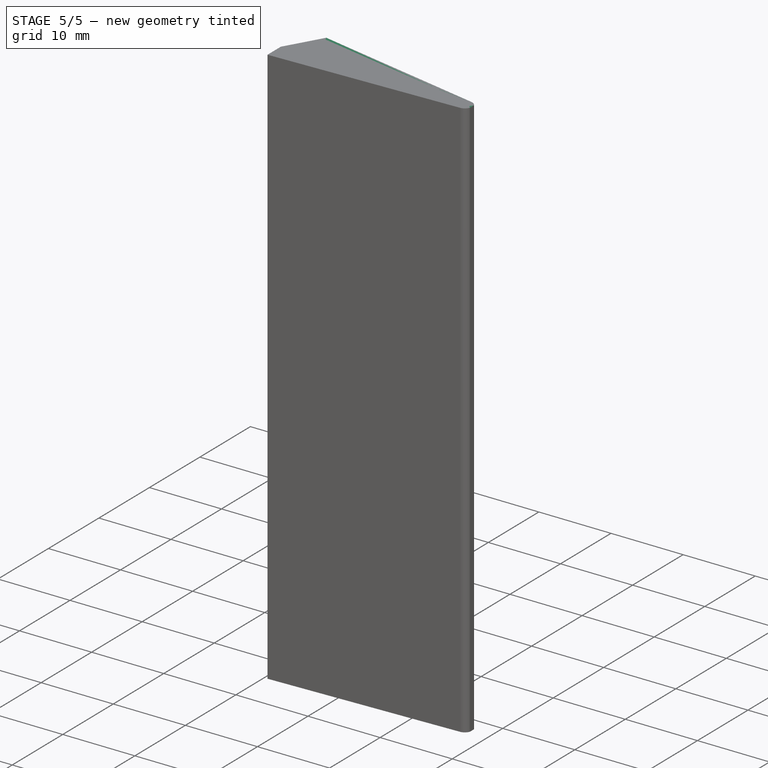
[diagram: stage 5 of 5 — iso view after this stage's code; geometry added in this stage tinted green]
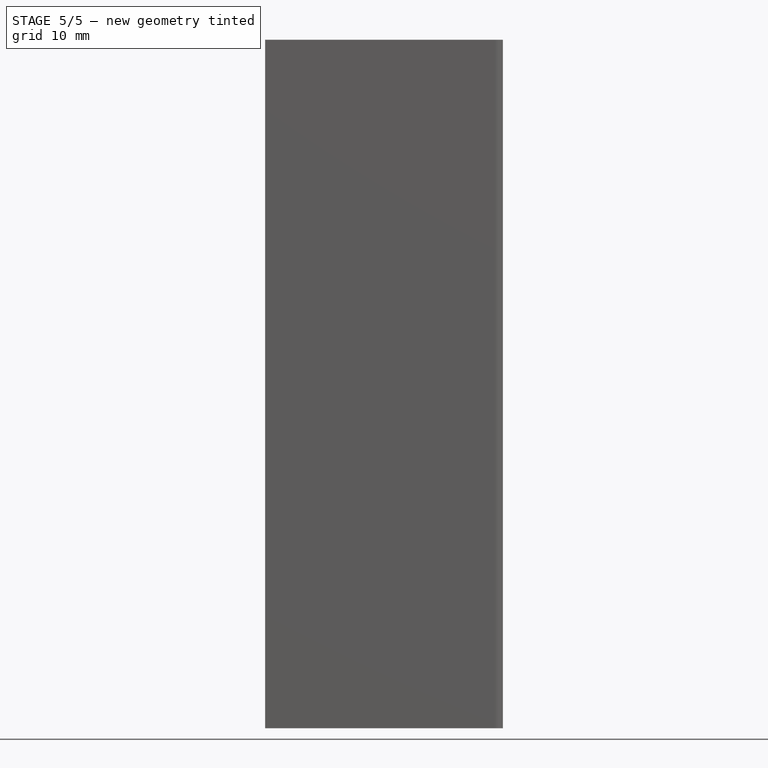
[diagram: stage 5 of 5 — front view after this stage's code; geometry added in this stage tinted green]
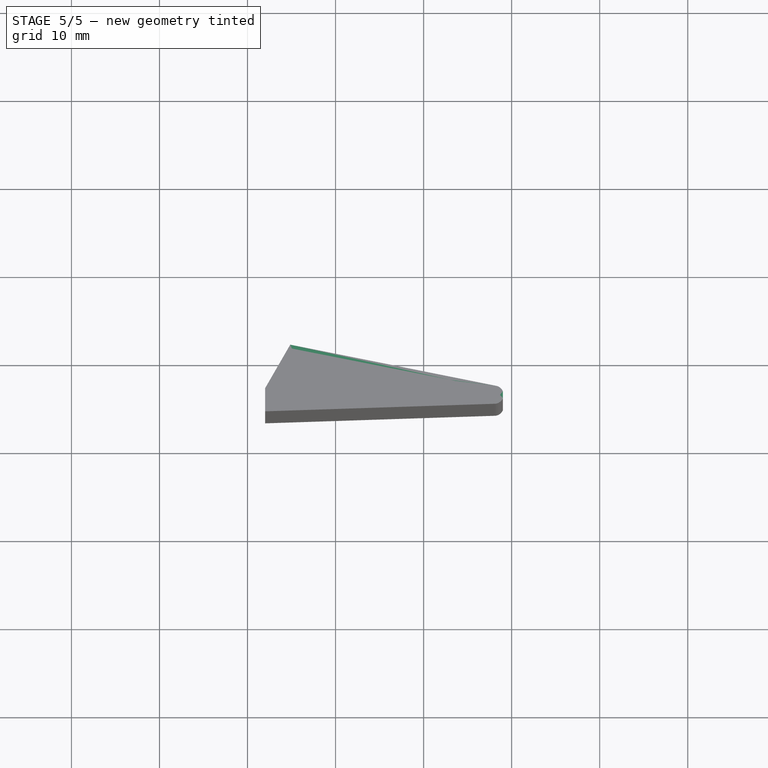
[diagram: stage 5 of 5 — top view after this stage's code; geometry added in this stage tinted green]
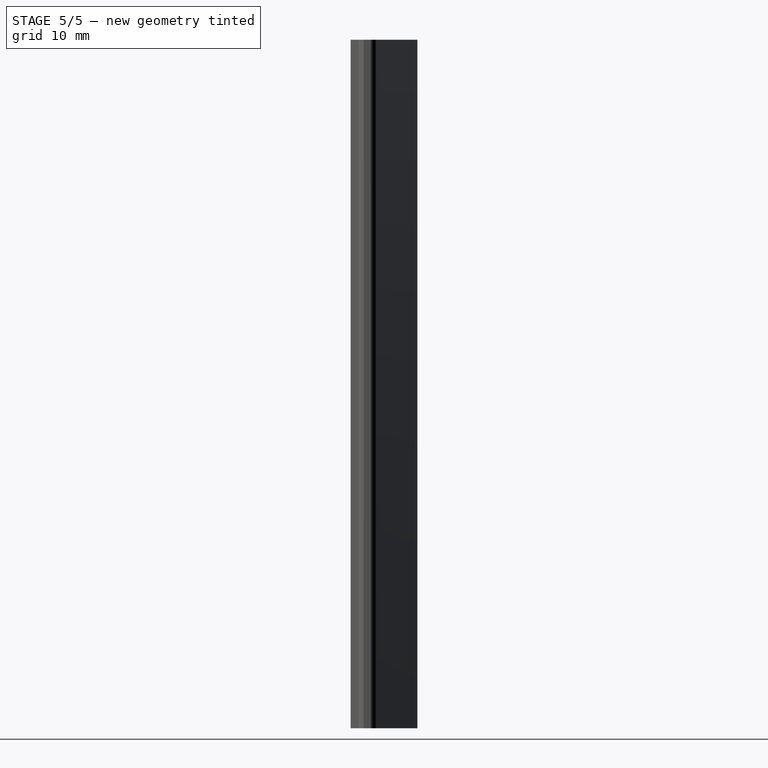
[diagram: stage 5 of 5 — right view after this stage's code; geometry added in this stage tinted green]
FEATURE [Part::FeaturePython] Array  # Draft array (typed FeaturePython)
  AlwaysSyncPlacement = false
  Angle = 360
  ArrayType = 0
  Axis = (0,0,1)
  Base = -> Box
  Center = (0,0,0)
  Count = 10
  ExpandArray = false
  Fuse = false
  IntervalAxis = (0,0,0)
  IntervalX = (100,0,0)
  IntervalY = (0,100,0)
  IntervalZ = (0,0,40)
  NumberCircles = 3
  NumberPolar = 5
  NumberX = 1
  NumberY = 1
  NumberZ = 10
  PlacementList = 10 placements: arithmetic series from (-100,-15,0) step (0,0,40) to (-100,-15,360)
  RadialDistance = 50
  ScaleList = (10) [(1,1,1),(1,1,1),(1,1,1),(1,1,1),(1,1,1),(1,1,1),(1,1,1),(1,1,1),(1,1,1),(1,1,1)]
  Symmetry = 1
  TangentialDistance = 25
FEATURE [Part::FeaturePython] Array001  # Draft array (typed FeaturePython)
  AlwaysSyncPlacement = false
  Angle = 360
  ArrayType = 0
  Axis = (0,0,1)
  Base = -> Array
  Center = (0,0,0)
  Count = 9
  ExpandArray = false
  Fuse = false
  IntervalAxis = (0,0,0)
  IntervalX = (100,0,0)
  IntervalY = (0,100,0)
  IntervalZ = (0,0,40)
  NumberCircles = 3
  NumberPolar = 5
  NumberX = 1
  NumberY = 1
  NumberZ = 9
  PlacementList = 9 placements: arithmetic series from (0,0,0) step (0,0,40) to (0,0,320)
  RadialDistance = 50
  ScaleList = (9) [(1,1,1),(1,1,1),(1,1,1),(1,1,1),(1,1,1),(1,1,1),(1,1,1),(1,1,1),(1,1,1)]
  Symmetry = 1
  TangentialDistance = 25
FEATURE [Part::Box] Box001  label="Cube001"
  AttacherType = Attacher::AttachEngine3D
  Height = 0.4
  Length = 300
  Placement = pos=(-100,-15,0) rot=(0,-1,0;0.785398rad)
  Width = 30
FEATURE [PartDesign::Body] Body004
  Group = -> [Sketch005,Pad005]
  Origin = -> Origin004
  Tip = -> Pad005
FEATURE [Part::MultiCommon] Common
  Shapes = -> [Body004,Array002]
FEATURE [Part::MultiFuse] Fusion
  Shapes = -> [Common001,Common]
FEATURE [PartDesign::Body] Body002
  Group = -> [Sketch003,Pad003,Thickness]
  Origin = -> Origin002
  Tip = -> Thickness
FEATURE [Part::MultiFuse] Fusion001
  Shapes = -> [Body002,Fusion]
FEATURE [Part::MultiCommon] Common003
  Shapes = -> [Body001,Fusion001]
FEATURE [Part::MultiFuse] Fusion002
  Shapes = -> [Common006,Common007,Common008,Common003]
FEATURE [Part::Box] Box006  label="Cube006"
  AttacherType = Attacher::AttachEngine3D
  Height = 100
  Length = 10
  Placement = pos=(41,-3,38) rot=(0,0,1;5.75959rad)
  Width = 20
FEATURE [Part::Cut] Cut
  Base = -> Fusion002
  Tool = -> Box003
FEATURE [Part::Cut] Cut002
  Base = -> Cut
  Tool = -> Box006
FEATURE [Part::MultiFuse] Fusion003
  Shapes = -> [Cut002,Common011,Common012]
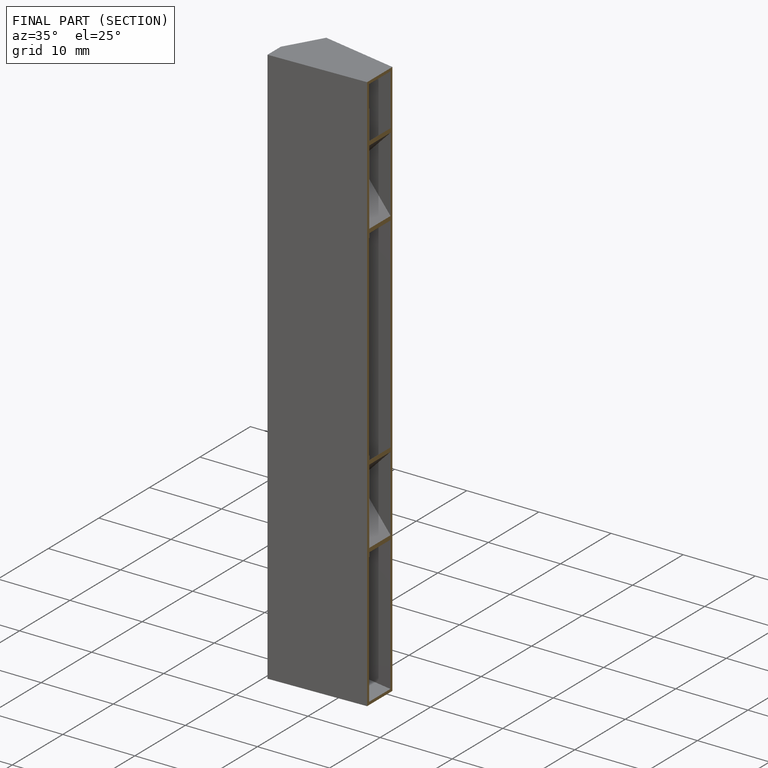
[diagram: finished part — half-section view (interior)]
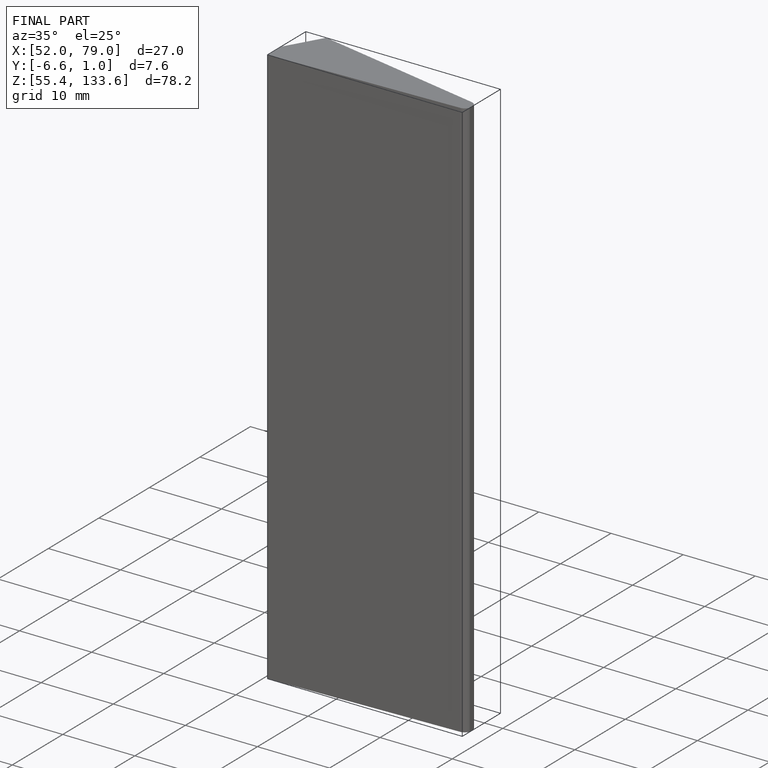
[diagram: finished part — iso view with bounding-box wireframe]
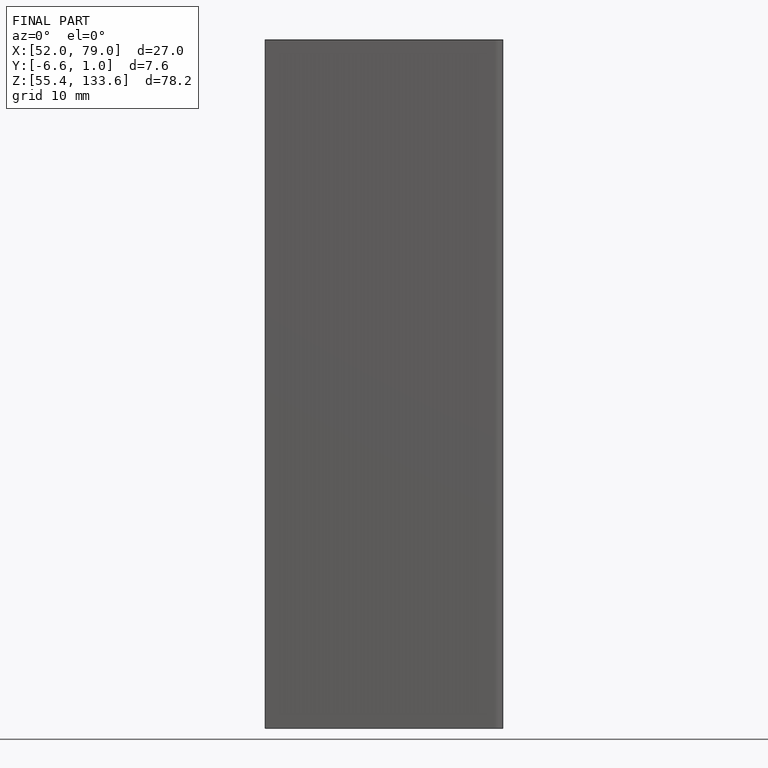
[diagram: finished part — front view with bounding-box wireframe]
